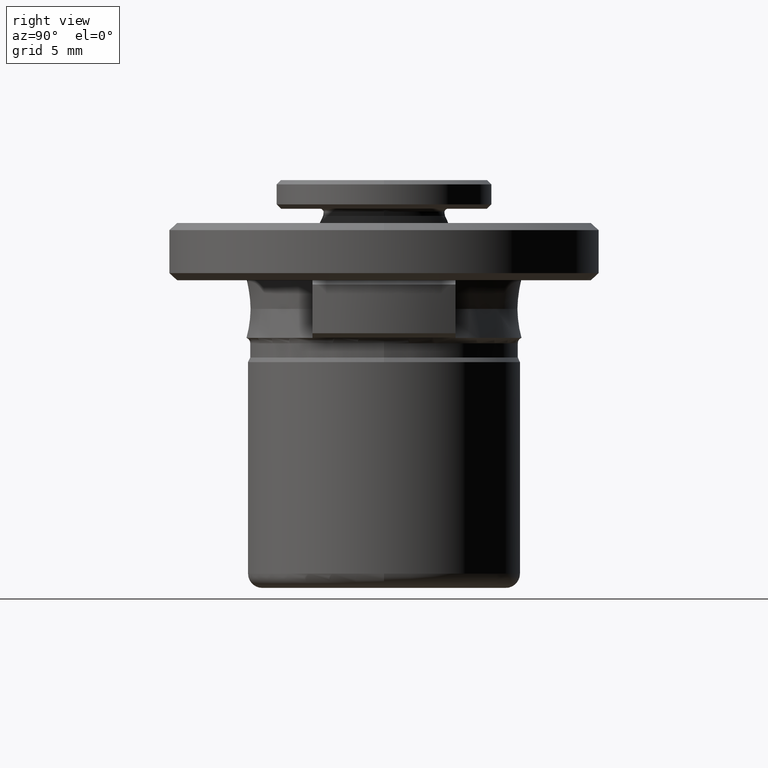
[diagram: clean part render]
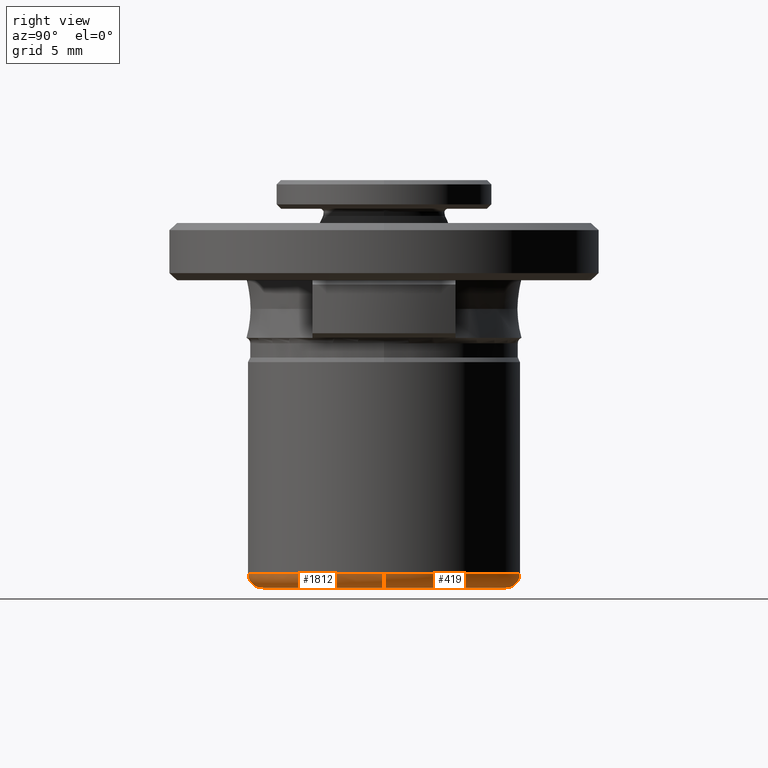
[diagram: same view with one multi-face feature highlighted, each face labeled with its STEP entity id]
A machine part, right view. The highlighted faces form ONE feature: a constant-radius fillet chain: 2 tangent blend faces with common blend radius 1 mm. The faces share edges in the B-rep.
Their STEP definitions:
[1] entity #1812 (Torus):
#19 = DIRECTION ( 'NONE',  ( 0.0000000000000000000, -1.000000000000000000, 0.0000000000000000000 ) ) ;
#50 = EDGE_CURVE ( 'NONE', #321, #683, #55, .T. ) ;
#52 = AXIS2_PLACEMENT_3D ( 'NONE', #1679, #673, #1859 ) ;
#55 = CIRCLE ( 'NONE', #595, 9.500000000000000000 ) ;
#144 = CARTESIAN_POINT ( 'NONE',  ( 9.500000000000001800, 2.364620801796248300E-016, -11.75000000000000000 ) ) ;
#321 = VERTEX_POINT ( 'NONE', #396 ) ;
#349 = DIRECTION ( 'NONE',  ( 0.0000000000000000000, 0.0000000000000000000, 1.000000000000000000 ) ) ;
#352 = FACE_OUTER_BOUND ( 'NONE', #1967, .T. ) ;
#363 = CARTESIAN_POINT ( 'NONE',  ( 8.500000000000000000, 2.364620801796248300E-016, -12.75000000000000200 ) ) ;
#383 = EDGE_CURVE ( 'NONE', #1165, #1697, #399, .T. ) ;
#396 = CARTESIAN_POINT ( 'NONE',  ( 0.0000000000000000000, -9.500000000000000000, -11.75000000000000000 ) ) ;
#399 = CIRCLE ( 'NONE', #2020, 8.500000000000000000 ) ;
#408 = ORIENTED_EDGE ( 'NONE', *, *, #1575, .F. ) ;
#498 = ORIENTED_EDGE ( 'NONE', *, *, #50, .F. ) ;
#504 = CARTESIAN_POINT ( 'NONE',  ( 0.0000000000000000000, 2.364620801796248300E-016, -11.75000000000000000 ) ) ;
#582 = VERTEX_POINT ( 'NONE', #774 ) ;
#595 = AXIS2_PLACEMENT_3D ( 'NONE', #1960, #1051, #2035 ) ;
#671 = CARTESIAN_POINT ( 'NONE',  ( -8.500000000000000000, 1.277411859454874900E-015, -11.75000000000000000 ) ) ;
#673 = DIRECTION ( 'NONE',  ( 0.0000000000000000000, 0.0000000000000000000, 1.000000000000000000 ) ) ;
#683 = VERTEX_POINT ( 'NONE', #144 ) ;
#774 = CARTESIAN_POINT ( 'NONE',  ( -9.500000000000001800, 1.399876539369610000E-015, -11.75000000000000000 ) ) ;
#842 = DIRECTION ( 'NONE',  ( -1.000000000000000000, 1.224646799147351500E-016, 0.0000000000000000000 ) ) ;
#849 = DIRECTION ( 'NONE',  ( 1.000000000000000000, 0.0000000000000000000, 0.0000000000000000000 ) ) ;
#947 = CARTESIAN_POINT ( 'NONE',  ( 0.0000000000000000000, 2.364620801796248300E-016, -12.75000000000000200 ) ) ;
#1023 = CARTESIAN_POINT ( 'NONE',  ( 8.500000000000000000, 2.364620801796248300E-016, -11.75000000000000000 ) ) ;
#1051 = DIRECTION ( 'NONE',  ( 0.0000000000000000000, 0.0000000000000000000, 1.000000000000000000 ) ) ;
#1117 = ORIENTED_EDGE ( 'NONE', *, *, #1118, .F. ) ;
#1118 = EDGE_CURVE ( 'NONE', #582, #321, #1196, .T. ) ;
#1139 = AXIS2_PLACEMENT_3D ( 'NONE', #671, #1855, #842 ) ;
#1165 = VERTEX_POINT ( 'NONE', #363 ) ;
#1188 = DIRECTION ( 'NONE',  ( 0.0000000000000000000, 0.0000000000000000000, -1.000000000000000000 ) ) ;
#1196 = CIRCLE ( 'NONE', #52, 9.500000000000000000 ) ;
#1207 = ORIENTED_EDGE ( 'NONE', *, *, #1809, .T. ) ;
#1217 = CIRCLE ( 'NONE', #1139, 1.000000000000000900 ) ;
#1306 = DIRECTION ( 'NONE',  ( -0.0000000000000000000, -0.0000000000000000000, -1.000000000000000000 ) ) ;
#1396 = ORIENTED_EDGE ( 'NONE', *, *, #383, .F. ) ;
#1481 = CARTESIAN_POINT ( 'NONE',  ( -8.500000000000000000, 1.338644199412242400E-015, -12.75000000000000200 ) ) ;
#1518 = DIRECTION ( 'NONE',  ( 1.000000000000000000, 0.0000000000000000000, 0.0000000000000000000 ) ) ;
#1575 = EDGE_CURVE ( 'NONE', #1697, #582, #1217, .T. ) ;
#1650 = AXIS2_PLACEMENT_3D ( 'NONE', #1023, #19, #1188 ) ;
#1679 = CARTESIAN_POINT ( 'NONE',  ( 0.0000000000000000000, 2.364620801796248300E-016, -11.75000000000000000 ) ) ;
#1688 = CIRCLE ( 'NONE', #1650, 1.000000000000000900 ) ;
#1697 = VERTEX_POINT ( 'NONE', #1481 ) ;
#1809 = EDGE_CURVE ( 'NONE', #1165, #683, #1688, .T. ) ;
#1812 = ADVANCED_FACE ( 'NONE', ( #352 ), #2140, .T. ) ;
#1855 = DIRECTION ( 'NONE',  ( 1.224646799147353200E-016, 1.000000000000000000, -0.0000000000000000000 ) ) ;
#1859 = DIRECTION ( 'NONE',  ( 1.000000000000000000, 0.0000000000000000000, 0.0000000000000000000 ) ) ;
#1878 = AXIS2_PLACEMENT_3D ( 'NONE', #504, #349, #1518 ) ;
#1960 = CARTESIAN_POINT ( 'NONE',  ( 0.0000000000000000000, 2.364620801796248300E-016, -11.75000000000000000 ) ) ;
#1967 = EDGE_LOOP ( 'NONE', ( #408, #1396, #1207, #498, #1117 ) ) ;
#2020 = AXIS2_PLACEMENT_3D ( 'NONE', #947, #1306, #849 ) ;
#2035 = DIRECTION ( 'NONE',  ( 1.000000000000000000, 0.0000000000000000000, 0.0000000000000000000 ) ) ;
#2140 = TOROIDAL_SURFACE ( 'NONE', #1878, 8.500000000000000000, 1.000000000000000000 ) ;
[2] entity #419 (Torus):
#1 = DIRECTION ( 'NONE',  ( -0.0000000000000000000, -0.0000000000000000000, -1.000000000000000000 ) ) ;
#19 = DIRECTION ( 'NONE',  ( 0.0000000000000000000, -1.000000000000000000, 0.0000000000000000000 ) ) ;
#108 = AXIS2_PLACEMENT_3D ( 'NONE', #1007, #1, #166 ) ;
#144 = CARTESIAN_POINT ( 'NONE',  ( 9.500000000000001800, 2.364620801796248300E-016, -11.75000000000000000 ) ) ;
#166 = DIRECTION ( 'NONE',  ( 1.000000000000000000, 0.0000000000000000000, 0.0000000000000000000 ) ) ;
#175 = CARTESIAN_POINT ( 'NONE',  ( 0.0000000000000000000, 2.364620801796248300E-016, -11.75000000000000000 ) ) ;
#183 = DIRECTION ( 'NONE',  ( 1.000000000000000000, 0.0000000000000000000, 0.0000000000000000000 ) ) ;
#231 = EDGE_CURVE ( 'NONE', #1697, #1165, #2028, .T. ) ;
#232 = EDGE_CURVE ( 'NONE', #683, #468, #1187, .T. ) ;
#363 = CARTESIAN_POINT ( 'NONE',  ( 8.500000000000000000, 2.364620801796248300E-016, -12.75000000000000200 ) ) ;
#419 = ADVANCED_FACE ( 'NONE', ( #1635 ), #2085, .T. ) ;
#441 = AXIS2_PLACEMENT_3D ( 'NONE', #175, #1019, #183 ) ;
#458 = ORIENTED_EDGE ( 'NONE', *, *, #1809, .F. ) ;
#468 = VERTEX_POINT ( 'NONE', #908 ) ;
#472 = CARTESIAN_POINT ( 'NONE',  ( 0.0000000000000000000, 2.364620801796248300E-016, -11.75000000000000000 ) ) ;
#523 = AXIS2_PLACEMENT_3D ( 'NONE', #472, #1651, #646 ) ;
#582 = VERTEX_POINT ( 'NONE', #774 ) ;
#646 = DIRECTION ( 'NONE',  ( 1.000000000000000000, 0.0000000000000000000, 0.0000000000000000000 ) ) ;
#671 = CARTESIAN_POINT ( 'NONE',  ( -8.500000000000000000, 1.277411859454874900E-015, -11.75000000000000000 ) ) ;
#683 = VERTEX_POINT ( 'NONE', #144 ) ;
#732 = AXIS2_PLACEMENT_3D ( 'NONE', #1435, #1135, #2126 ) ;
#774 = CARTESIAN_POINT ( 'NONE',  ( -9.500000000000001800, 1.399876539369610000E-015, -11.75000000000000000 ) ) ;
#842 = DIRECTION ( 'NONE',  ( -1.000000000000000000, 1.224646799147351500E-016, 0.0000000000000000000 ) ) ;
#908 = CARTESIAN_POINT ( 'NONE',  ( 1.163414459189985500E-015, 9.500000000000000000, -11.75000000000000000 ) ) ;
#1007 = CARTESIAN_POINT ( 'NONE',  ( 0.0000000000000000000, 2.364620801796248300E-016, -12.75000000000000200 ) ) ;
#1019 = DIRECTION ( 'NONE',  ( 0.0000000000000000000, 0.0000000000000000000, 1.000000000000000000 ) ) ;
#1023 = CARTESIAN_POINT ( 'NONE',  ( 8.500000000000000000, 2.364620801796248300E-016, -11.75000000000000000 ) ) ;
#1044 = ORIENTED_EDGE ( 'NONE', *, *, #231, .F. ) ;
#1058 = EDGE_LOOP ( 'NONE', ( #1044, #2032, #1892, #1986, #458 ) ) ;
#1135 = DIRECTION ( 'NONE',  ( 0.0000000000000000000, 0.0000000000000000000, 1.000000000000000000 ) ) ;
#1139 = AXIS2_PLACEMENT_3D ( 'NONE', #671, #1855, #842 ) ;
#1165 = VERTEX_POINT ( 'NONE', #363 ) ;
#1187 = CIRCLE ( 'NONE', #441, 9.500000000000000000 ) ;
#1188 = DIRECTION ( 'NONE',  ( 0.0000000000000000000, 0.0000000000000000000, -1.000000000000000000 ) ) ;
#1217 = CIRCLE ( 'NONE', #1139, 1.000000000000000900 ) ;
#1435 = CARTESIAN_POINT ( 'NONE',  ( 0.0000000000000000000, 2.364620801796248300E-016, -11.75000000000000000 ) ) ;
#1481 = CARTESIAN_POINT ( 'NONE',  ( -8.500000000000000000, 1.338644199412242400E-015, -12.75000000000000200 ) ) ;
#1501 = CIRCLE ( 'NONE', #523, 9.500000000000000000 ) ;
#1575 = EDGE_CURVE ( 'NONE', #1697, #582, #1217, .T. ) ;
#1635 = FACE_OUTER_BOUND ( 'NONE', #1058, .T. ) ;
#1650 = AXIS2_PLACEMENT_3D ( 'NONE', #1023, #19, #1188 ) ;
#1651 = DIRECTION ( 'NONE',  ( 0.0000000000000000000, 0.0000000000000000000, 1.000000000000000000 ) ) ;
#1684 = EDGE_CURVE ( 'NONE', #468, #582, #1501, .T. ) ;
#1688 = CIRCLE ( 'NONE', #1650, 1.000000000000000900 ) ;
#1697 = VERTEX_POINT ( 'NONE', #1481 ) ;
#1809 = EDGE_CURVE ( 'NONE', #1165, #683, #1688, .T. ) ;
#1855 = DIRECTION ( 'NONE',  ( 1.224646799147353200E-016, 1.000000000000000000, -0.0000000000000000000 ) ) ;
#1892 = ORIENTED_EDGE ( 'NONE', *, *, #1684, .F. ) ;
#1986 = ORIENTED_EDGE ( 'NONE', *, *, #232, .F. ) ;
#2028 = CIRCLE ( 'NONE', #108, 8.500000000000000000 ) ;
#2032 = ORIENTED_EDGE ( 'NONE', *, *, #1575, .T. ) ;
#2085 = TOROIDAL_SURFACE ( 'NONE', #732, 8.500000000000000000, 1.000000000000000000 ) ;
#2126 = DIRECTION ( 'NONE',  ( 1.000000000000000000, 0.0000000000000000000, 0.0000000000000000000 ) ) ;